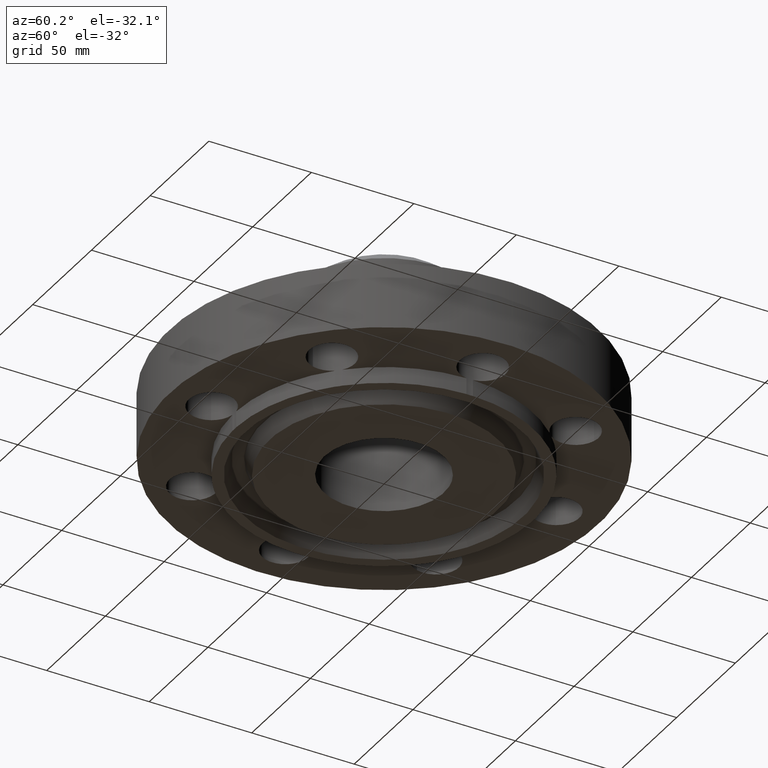
[diagram: clean part render]
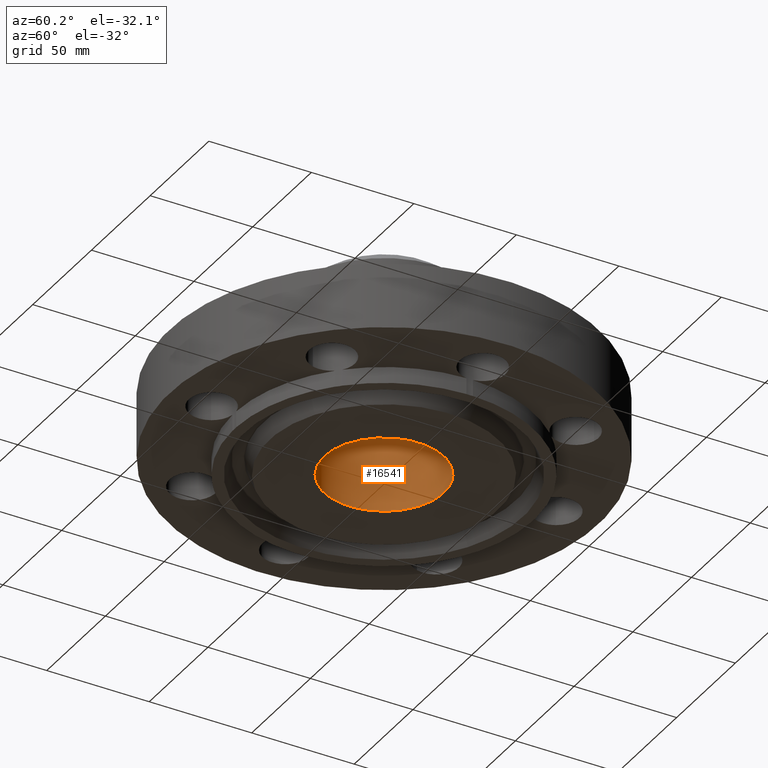
[diagram: same view with one face highlighted and labeled with its STEP entity id]
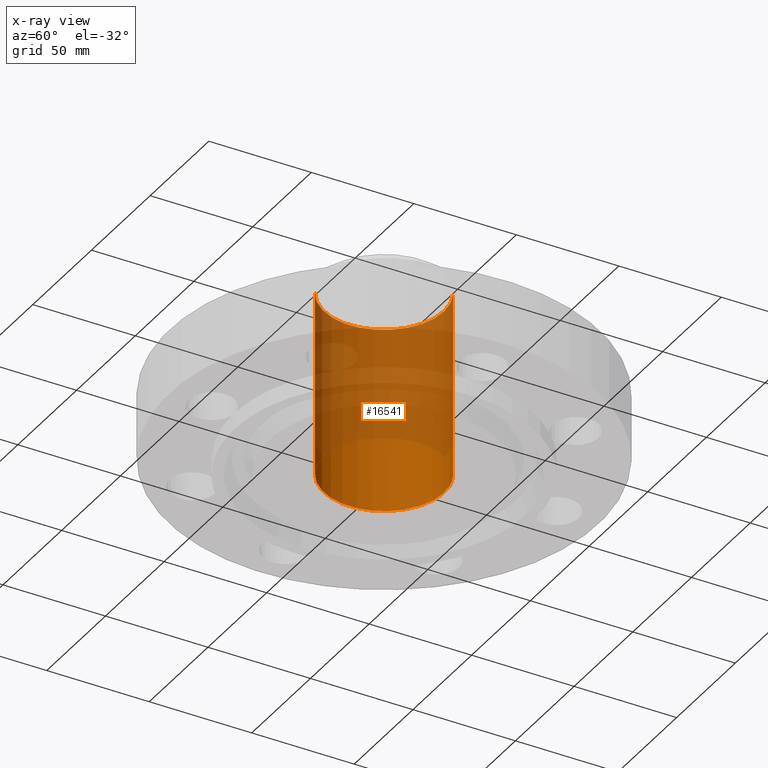
[diagram: x-ray of the same camera — body ghosted, the highlighted face saturated]
A machine part, auxiliary view. The second image highlights one B-rep face of the part: STEP entity #16541.
The next image is the same camera in x-ray: the body ghosted, the highlighted face saturated — about 68% of this face is hidden behind the body in this view.
In plain terms, the highlighted cylindrical surface (partial cylindrical patch) has radius 29.21 mm, axis along (0, 0, -1).
Its self-contained STEP definition (entity closure, byte-faithful):
#5665=AXIS2_PLACEMENT_3D('Circle Axis2P3D',#5663,#5664,$) ;
#16502=AXIS2_PLACEMENT_3D('Cylinder Axis2P3D',#16499,#16500,#16501) ;
#5663=CARTESIAN_POINT('Axis2P3D Location',(-1.281158906E-011,9.66617861868E-012,3.25000000001)) ;
#5667=CARTESIAN_POINT('Vertex',(-0.551339369414,-1.00921994614,3.25000000001)) ;
#5669=CARTESIAN_POINT('Vertex',(0.551339369414,1.00921994614,3.25000000001)) ;
#16499=CARTESIAN_POINT('Axis2P3D Location',(0.,0.,1.46850000001)) ;
#16504=CARTESIAN_POINT('Line Origine',(-0.551339369395,-1.00921994617,1.4685)) ;
#16508=CARTESIAN_POINT('Vertex',(-0.551339369414,-1.00921994614,-0.313000000001)) ;
#16512=CARTESIAN_POINT('Control Point',(-0.551339369395,-1.00921994617,-0.313000000001)) ;
#16513=CARTESIAN_POINT('Control Point',(-0.709867267833,-0.922615760547,-0.313)) ;
#16514=CARTESIAN_POINT('Control Point',(-0.851390474187,-0.804884694851,-0.312999999999)) ;
#16515=CARTESIAN_POINT('Control Point',(-0.967732423309,-0.66045368378,-0.312999999998)) ;
#16516=CARTESIAN_POINT('Control Point',(-1.13751623554,-0.333756355705,-0.312999999997)) ;
#16517=CARTESIAN_POINT('Control Point',(-1.17116340354,0.0328845519327,-0.312999999995)) ;
#16518=CARTESIAN_POINT('Control Point',(-1.15130143736,0.217278880436,-0.312999999994)) ;
#16519=CARTESIAN_POINT('Control Point',(-1.04034682624,0.568344061478,-0.312999999992)) ;
#16520=CARTESIAN_POINT('Control Point',(-0.804884694852,0.851390474187,-0.31299999999)) ;
#16521=CARTESIAN_POINT('Control Point',(-0.66045368378,0.967732423309,-0.31299999999)) ;
#16522=CARTESIAN_POINT('Control Point',(-0.333756355705,1.13751623554,-0.312999999988)) ;
#16523=CARTESIAN_POINT('Control Point',(0.0328845519319,1.17116340354,-0.312999999986)) ;
#16524=CARTESIAN_POINT('Control Point',(0.217278880435,1.15130143736,-0.312999999985)) ;
#16525=CARTESIAN_POINT('Control Point',(0.392811470956,1.0958241318,-0.312999999984)) ;
#16526=CARTESIAN_POINT('Control Point',(0.551339369394,1.00921994617,-0.312999999983)) ;
#16527=CARTESIAN_POINT('Vertex',(0.551339369395,1.00921994617,-0.312999999983)) ;
#16530=CARTESIAN_POINT('Line Origine',(0.551339369395,1.00921994617,1.4685)) ;
#5664=DIRECTION('Axis2P3D Direction',(0.,0.,-0.0393700787402)) ;
#16500=DIRECTION('Axis2P3D Direction',(0.,0.,-0.0393700787402)) ;
#16501=DIRECTION('Axis2P3D XDirection',(-0.0188750212049,-0.0345504945626,0.)) ;
#16505=DIRECTION('Vector Direction',(0.,0.,-0.0393700787402)) ;
#16531=DIRECTION('Vector Direction',(0.,0.,-0.0393700787402)) ;
#16506=VECTOR('Line Direction',#16505,0.0393700787402) ;
#16532=VECTOR('Line Direction',#16531,0.0393700787402) ;
#16536=ORIENTED_EDGE('',*,*,#5671,.F.) ;
#16537=ORIENTED_EDGE('',*,*,#16510,.T.) ;
#16538=ORIENTED_EDGE('',*,*,#16529,.T.) ;
#16539=ORIENTED_EDGE('',*,*,#16534,.F.) ;
#16541=ADVANCED_FACE('PartBody',(#16540),#16503,.F.) ;
#16511=B_SPLINE_CURVE_WITH_KNOTS('',5,(#16512,#16513,#16514,#16515,#16516,#16517,#16518,#16519,#16520,#16521,#16522,#16523,#16524,#16525,#16526),.UNSPECIFIED.,.F.,.U.,(6,3,3,3,6),(-45.8829607057,-22.9414803528,0.,22.9414803528,45.8829607057),.UNSPECIFIED.) ;
#5666=CIRCLE('generated circle',#5665,1.14999999998) ;
#16503=CYLINDRICAL_SURFACE('generated cylinder',#16502,1.15) ;
#5671=EDGE_CURVE('',#5668,#5670,#5666,.T.) ;
#16510=EDGE_CURVE('',#5668,#16509,#16507,.T.) ;
#16529=EDGE_CURVE('',#16509,#16528,#16511,.T.) ;
#16534=EDGE_CURVE('',#5670,#16528,#16533,.T.) ;
#16535=EDGE_LOOP('',(#16536,#16537,#16538,#16539)) ;
#16540=FACE_OUTER_BOUND('',#16535,.T.) ;
#16507=LINE('Line',#16504,#16506) ;
#16533=LINE('Line',#16530,#16532) ;
#5668=VERTEX_POINT('',#5667) ;
#5670=VERTEX_POINT('',#5669) ;
#16509=VERTEX_POINT('',#16508) ;
#16528=VERTEX_POINT('',#16527) ;